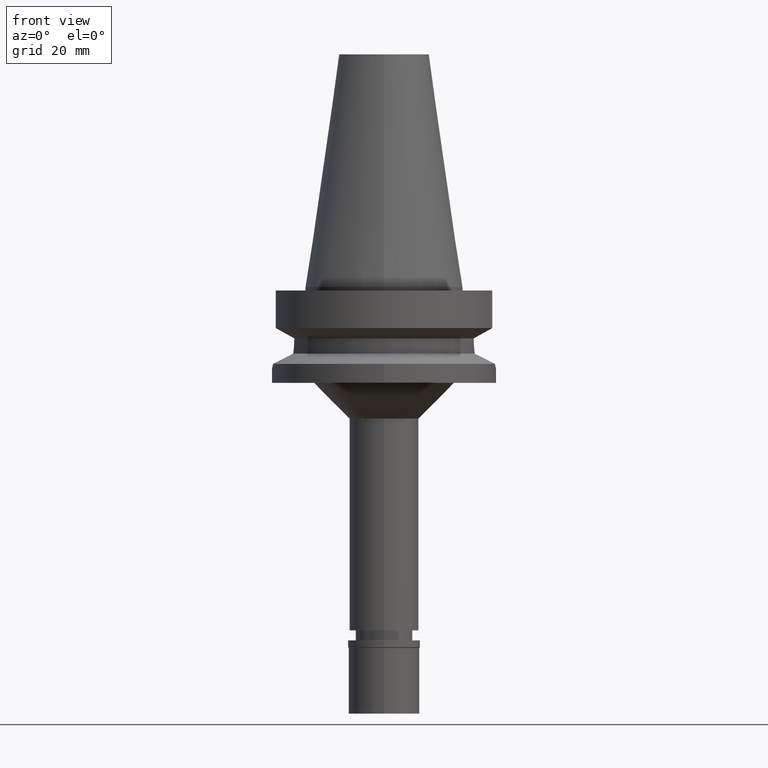
[diagram: clean part render]
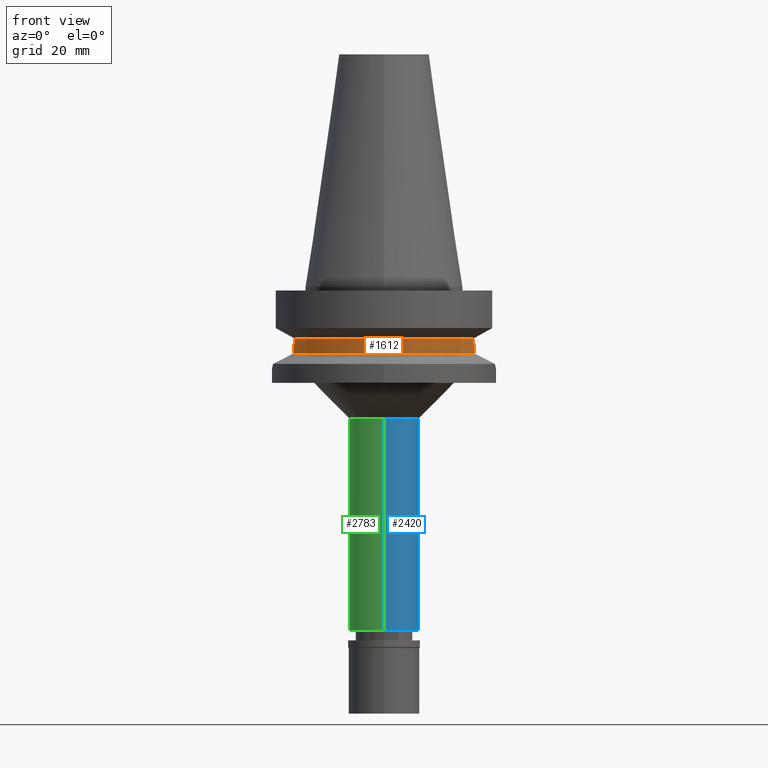
[diagram: same view with three faces highlighted in distinct colors, each labeled with its STEP entity id]
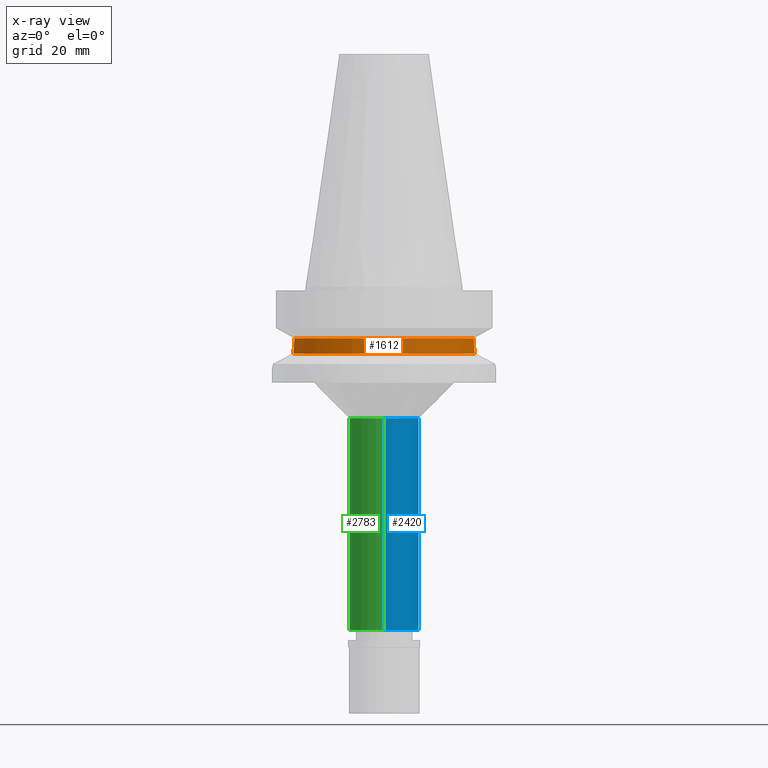
[diagram: x-ray of the same camera — body ghosted, the three highlighted faces saturated]
A machine part, front view with three faces highlighted in distinct colors.
The next image is the same camera in x-ray (body ghosted, the three faces saturated) — at least one of them is partly hidden behind the body in this view.
Their STEP definitions:

[orange] entity #1612 — the highlighted cylindrical surface (partial cylindrical patch) has radius 26.5 mm, axis along (0, 0, -1).
#17 = DIRECTION ( 'NONE',  ( 0.0000000000000000000, 0.0000000000000000000, -1.000000000000000000 ) ) ;
#66 = AXIS2_PLACEMENT_3D ( 'NONE', #531, #17, #258 ) ;
#86 = CARTESIAN_POINT ( 'NONE',  ( 0.0000000000000000000, 0.0000000000000000000, -14.45225699861000024 ) ) ;
#110 = CARTESIAN_POINT ( 'NONE',  ( -25.24772266958000344, -8.050000000000000711, -14.94999999999999929 ) ) ;
#128 = CARTESIAN_POINT ( 'NONE',  ( 0.0000000000000000000, 0.0000000000000000000, -18.74774300138999905 ) ) ;
#235 = ORIENTED_EDGE ( 'NONE', *, *, #1498, .F. ) ;
#258 = DIRECTION ( 'NONE',  ( 0.0000000000000000000, -1.000000000000000000, 0.0000000000000000000 ) ) ;
#355 = AXIS2_PLACEMENT_3D ( 'NONE', #86, #2457, #2487 ) ;
#380 = CARTESIAN_POINT ( 'NONE',  ( -25.53175183775000079, -7.097862220092999941, -18.74774300138999905 ) ) ;
#391 = CARTESIAN_POINT ( 'NONE',  ( 25.36814761471072188, -7.663830712965397751, -17.48803584493440155 ) ) ;
#408 = CIRCLE ( 'NONE', #355, 26.50000000000000711 ) ;
#437 = VERTEX_POINT ( 'NONE', #110 ) ;
#440 = CARTESIAN_POINT ( 'NONE',  ( 25.31202572170775156, -7.845729406580137066, -16.75279821057739937 ) ) ;
#462 = CARTESIAN_POINT ( 'NONE',  ( -25.24772266958000699, -8.050000000000000711, -15.58980474858213938 ) ) ;
#470 = CARTESIAN_POINT ( 'NONE',  ( 25.24772266958000344, -8.050000000000000711, -14.94999999999999929 ) ) ;
#482 = CARTESIAN_POINT ( 'NONE',  ( 25.24772266958000344, -8.050000000000000711, -14.45225699861000024 ) ) ;
#487 = EDGE_CURVE ( 'NONE', #437, #2580, #3079, .T. ) ;
#529 = EDGE_LOOP ( 'NONE', ( #2965, #855, #1046, #235, #3015, #730 ) ) ;
#531 = CARTESIAN_POINT ( 'NONE',  ( 0.0000000000000000000, 0.0000000000000000000, 0.0000000000000000000 ) ) ;
#641 = CARTESIAN_POINT ( 'NONE',  ( 25.31648647172268340, -7.831300037042765894, -16.81378020971402876 ) ) ;
#677 = CARTESIAN_POINT ( 'NONE',  ( 25.24772266958000344, -8.050000000000000711, -14.94999999999999929 ) ) ;
#697 = CARTESIAN_POINT ( 'NONE',  ( -25.32546393109958061, -7.802212764474003137, -16.93200521438838990 ) ) ;
#730 = ORIENTED_EDGE ( 'NONE', *, *, #487, .F. ) ;
#741 = CARTESIAN_POINT ( 'NONE',  ( -25.32415339823800338, -7.806463147621001575, -16.91521530248343197 ) ) ;
#752 = EDGE_CURVE ( 'NONE', #2999, #437, #1081, .T. ) ;
#855 = ORIENTED_EDGE ( 'NONE', *, *, #2988, .T. ) ;
#912 = VERTEX_POINT ( 'NONE', #1706 ) ;
#951 = CARTESIAN_POINT ( 'NONE',  ( -25.34384264181177926, -7.742472632649030295, -17.15618260535354977 ) ) ;
#982 = CARTESIAN_POINT ( 'NONE',  ( -25.33288764354210443, -7.778115188336424346, -17.02509724684081860 ) ) ;
#996 = CIRCLE ( 'NONE', #2753, 26.50000000000000000 ) ;
#1001 = VERTEX_POINT ( 'NONE', #482 ) ;
#1046 = ORIENTED_EDGE ( 'NONE', *, *, #2026, .F. ) ;
#1081 = B_SPLINE_CURVE_WITH_KNOTS ( 'NONE', 3,
 ( #1699, #1922, #2914, #1889, #2886, #1903, #951, #982, #2901, #697, #741, #1441, #462, #2421 ),
 .UNSPECIFIED., .F., .F.,
 ( 4, 2, 2, 1, 1, 2, 2, 4 ),
 ( 0.0000000000000000000, 0.2499999999999951150, 0.3749999999999914513, 0.4374999999999895084, 0.4687499999999885647, 0.4843749999999894529, 0.4999999999999903411, 1.000000000000000000 ),
 .UNSPECIFIED. ) ;
#1153 = LINE ( 'NONE', #1619, #2838 ) ;
#1167 = CARTESIAN_POINT ( 'NONE',  ( 25.27268336911708602, -7.971811480182260823, -16.08115959834934827 ) ) ;
#1181 = CARTESIAN_POINT ( 'NONE',  ( 25.25396284446426876, -8.030907492774099765, -15.59360398733918451 ) ) ;
#1395 = CARTESIAN_POINT ( 'NONE',  ( 25.31950905643224914, -7.821515286679936452, -16.85442525727312102 ) ) ;
#1410 = CARTESIAN_POINT ( 'NONE',  ( 25.53175183775000079, -7.097862220092999941, -18.74774300138999905 ) ) ;
#1426 = CYLINDRICAL_SURFACE ( 'NONE', #66, 26.50000000000000000 ) ;
#1441 = CARTESIAN_POINT ( 'NONE',  ( -25.27267964220303043, -7.973335155931463802, -16.24499043154098388 ) ) ;
#1498 = EDGE_CURVE ( 'NONE', #1001, #2674, #1153, .T. ) ;
#1612 = ADVANCED_FACE ( 'NONE', ( #2180 ), #1426, .T. ) ;
#1619 = CARTESIAN_POINT ( 'NONE',  ( 25.24772216380999978, -8.050001586270999709, -14.45224487810000014 ) ) ;
#1634 = CARTESIAN_POINT ( 'NONE',  ( 25.24772266958000699, -8.050000000000002487, -15.26991324108734283 ) ) ;
#1699 = CARTESIAN_POINT ( 'NONE',  ( -25.53175183775000079, -7.097862220092999941, -18.74774300138999905 ) ) ;
#1706 = CARTESIAN_POINT ( 'NONE',  ( 25.53175183775000079, -7.097862220092999941, -18.74774300138999905 ) ) ;
#1793 = DIRECTION ( 'NONE',  ( 0.0000000000000000000, 0.0000000000000000000, 1.000000000000000000 ) ) ;
#1817 = CARTESIAN_POINT ( 'NONE',  ( -25.24772413127999826, -8.049995415561999934, -14.45229202969999882 ) ) ;
#1820 = CARTESIAN_POINT ( 'NONE',  ( 25.43786330456364908, -7.435589081429985647, -18.11654211998960307 ) ) ;
#1885 = CARTESIAN_POINT ( 'NONE',  ( 25.30212919435223640, -7.877667573970346560, -16.61042047323940452 ) ) ;
#1889 = CARTESIAN_POINT ( 'NONE',  ( -25.39161415870588456, -7.584927955021788293, -17.65164487468281251 ) ) ;
#1903 = CARTESIAN_POINT ( 'NONE',  ( -25.35408242312715998, -7.708967322931910893, -17.26962711324177135 ) ) ;
#1922 = CARTESIAN_POINT ( 'NONE',  ( -25.48480632956524516, -7.266730116910204984, -18.43213421359635618 ) ) ;
#2026 = EDGE_CURVE ( 'NONE', #2674, #912, #2860, .T. ) ;
#2180 = FACE_OUTER_BOUND ( 'NONE', #529, .T. ) ;
#2285 = EDGE_CURVE ( 'NONE', #1001, #2580, #408, .T. ) ;
#2309 = DIRECTION ( 'NONE',  ( -2.936871101531895487E-06, 9.211099824828682816E-06, 0.9999999999532651618 ) ) ;
#2421 = CARTESIAN_POINT ( 'NONE',  ( -25.24772266958000344, -8.050000000000000711, -14.94999999999999929 ) ) ;
#2457 = DIRECTION ( 'NONE',  ( 0.0000000000000000000, 0.0000000000000000000, -1.000000000000000000 ) ) ;
#2487 = DIRECTION ( 'NONE',  ( 0.9527442516822307583, -0.3037735849057093818, 0.0000000000000000000 ) ) ;
#2525 = VECTOR ( 'NONE', #2309, 1000.000000000000114 ) ;
#2580 = VERTEX_POINT ( 'NONE', #1817 ) ;
#2592 = DIRECTION ( 'NONE',  ( 1.016096754685005474E-06, 3.186850171212018399E-06, -0.9999999999944056972 ) ) ;
#2605 = CARTESIAN_POINT ( 'NONE',  ( 25.29452398121202350, -7.902090651792936349, -16.48828405102941375 ) ) ;
#2674 = VERTEX_POINT ( 'NONE', #470 ) ;
#2753 = AXIS2_PLACEMENT_3D ( 'NONE', #128, #1793, #2774 ) ;
#2774 = DIRECTION ( 'NONE',  ( 0.0000000000000000000, -1.000000000000000000, 0.0000000000000000000 ) ) ;
#2801 = CARTESIAN_POINT ( 'NONE',  ( 25.28048358772242210, -7.947040743794927309, -16.24400980664070460 ) ) ;
#2824 = CARTESIAN_POINT ( 'NONE',  ( -25.24772266958000344, -8.050000000000000711, -14.94999999999999929 ) ) ;
#2838 = VECTOR ( 'NONE', #2592, 1000.000000000000114 ) ;
#2850 = CARTESIAN_POINT ( 'NONE',  ( 25.32118155423751205, -7.816096717212928091, -16.87652453452369627 ) ) ;
#2860 = B_SPLINE_CURVE_WITH_KNOTS ( 'NONE', 3,
 ( #677, #1634, #1181, #1167, #2801, #2605, #1885, #440, #641, #1395, #2850, #391, #1820, #1410 ),
 .UNSPECIFIED., .F., .F.,
 ( 4, 2, 2, 1, 1, 2, 2, 4 ),
 ( 0.0000000000000000000, 0.2499999999999894529, 0.3749999999999841238, 0.4374999999999827360, 0.4687499999999818479, 0.4843749999999814038, 0.4999999999999809042, 1.000000000000000000 ),
 .UNSPECIFIED. ) ;
#2886 = CARTESIAN_POINT ( 'NONE',  ( -25.37569502948930733, -7.637838761477345528, -17.49780446183530813 ) ) ;
#2901 = CARTESIAN_POINT ( 'NONE',  ( -25.32840508998330620, -7.792668837054353759, -16.96920308240299136 ) ) ;
#2914 = CARTESIAN_POINT ( 'NONE',  ( -25.44390372128112077, -7.408325733453222206, -18.11690357828249986 ) ) ;
#2965 = ORIENTED_EDGE ( 'NONE', *, *, #752, .F. ) ;
#2988 = EDGE_CURVE ( 'NONE', #2999, #912, #996, .T. ) ;
#2999 = VERTEX_POINT ( 'NONE', #380 ) ;
#3015 = ORIENTED_EDGE ( 'NONE', *, *, #2285, .T. ) ;
#3079 = LINE ( 'NONE', #2824, #2525 ) ;

[blue] entity #2420 — the highlighted cylindrical surface (edge-blend (fillet) strip) has radius 9.75 mm, axis along (0, 0, -1).
#306 = VECTOR ( 'NONE', #683, 1000.000000000000000 ) ;
#386 = FACE_OUTER_BOUND ( 'NONE', #1127, .T. ) ;
#669 = CARTESIAN_POINT ( 'NONE',  ( 0.0000000000000000000, -9.750000000000000000, -96.60000000000000853 ) ) ;
#683 = DIRECTION ( 'NONE',  ( 0.0000000000000000000, 0.0000000000000000000, -1.000000000000000000 ) ) ;
#829 = VECTOR ( 'NONE', #2681, 1000.000000000000000 ) ;
#848 = EDGE_CURVE ( 'NONE', #1832, #859, #1669, .T. ) ;
#859 = VERTEX_POINT ( 'NONE', #1171 ) ;
#883 = CARTESIAN_POINT ( 'NONE',  ( 0.0000000000000000000, 0.0000000000000000000, -37.00000000000000000 ) ) ;
#902 = DIRECTION ( 'NONE',  ( 0.0000000000000000000, 0.0000000000000000000, -1.000000000000000000 ) ) ;
#1127 = EDGE_LOOP ( 'NONE', ( #2759, #3038, #2539, #3034 ) ) ;
#1171 = CARTESIAN_POINT ( 'NONE',  ( 0.0000000000000000000, 9.750000000000000000, -96.60000000000000853 ) ) ;
#1286 = AXIS2_PLACEMENT_3D ( 'NONE', #1323, #2566, #1340 ) ;
#1323 = CARTESIAN_POINT ( 'NONE',  ( 0.0000000000000000000, 0.0000000000000000000, 0.0000000000000000000 ) ) ;
#1340 = DIRECTION ( 'NONE',  ( 0.0000000000000000000, -1.000000000000000000, 0.0000000000000000000 ) ) ;
#1590 = CIRCLE ( 'NONE', #3006, 9.750000000000000000 ) ;
#1661 = CIRCLE ( 'NONE', #2820, 9.750000000000000000 ) ;
#1669 = LINE ( 'NONE', #2650, #829 ) ;
#1832 = VERTEX_POINT ( 'NONE', #2271 ) ;
#1845 = DIRECTION ( 'NONE',  ( 0.0000000000000000000, -1.000000000000000000, 0.0000000000000000000 ) ) ;
#1899 = DIRECTION ( 'NONE',  ( 0.0000000000000000000, 1.000000000000000000, 0.0000000000000000000 ) ) ;
#2080 = EDGE_CURVE ( 'NONE', #1832, #2252, #1661, .T. ) ;
#2100 = LINE ( 'NONE', #2826, #306 ) ;
#2142 = EDGE_CURVE ( 'NONE', #2252, #2927, #2100, .T. ) ;
#2252 = VERTEX_POINT ( 'NONE', #3000 ) ;
#2271 = CARTESIAN_POINT ( 'NONE',  ( 0.0000000000000000000, 9.750000000000000000, -37.00000000000000000 ) ) ;
#2332 = CARTESIAN_POINT ( 'NONE',  ( 0.0000000000000000000, 0.0000000000000000000, -96.60000000000000853 ) ) ;
#2368 = CYLINDRICAL_SURFACE ( 'NONE', #1286, 9.750000000000000000 ) ;
#2420 = ADVANCED_FACE ( 'NONE', ( #386 ), #2368, .T. ) ;
#2539 = ORIENTED_EDGE ( 'NONE', *, *, #2976, .T. ) ;
#2566 = DIRECTION ( 'NONE',  ( 0.0000000000000000000, 0.0000000000000000000, -1.000000000000000000 ) ) ;
#2650 = CARTESIAN_POINT ( 'NONE',  ( 0.0000000000000000000, 9.750000000000000000, -37.00000000000000000 ) ) ;
#2681 = DIRECTION ( 'NONE',  ( 0.0000000000000000000, 0.0000000000000000000, -1.000000000000000000 ) ) ;
#2759 = ORIENTED_EDGE ( 'NONE', *, *, #2080, .T. ) ;
#2820 = AXIS2_PLACEMENT_3D ( 'NONE', #883, #902, #1899 ) ;
#2826 = CARTESIAN_POINT ( 'NONE',  ( 0.0000000000000000000, -9.750000000000000000, -37.00000000000000000 ) ) ;
#2927 = VERTEX_POINT ( 'NONE', #669 ) ;
#2976 = EDGE_CURVE ( 'NONE', #2927, #859, #1590, .T. ) ;
#3000 = CARTESIAN_POINT ( 'NONE',  ( 0.0000000000000000000, -9.750000000000000000, -37.00000000000000000 ) ) ;
#3006 = AXIS2_PLACEMENT_3D ( 'NONE', #2332, #3030, #1845 ) ;
#3030 = DIRECTION ( 'NONE',  ( 0.0000000000000000000, 0.0000000000000000000, 1.000000000000000000 ) ) ;
#3034 = ORIENTED_EDGE ( 'NONE', *, *, #848, .F. ) ;
#3038 = ORIENTED_EDGE ( 'NONE', *, *, #2142, .T. ) ;

[green] entity #2783 — the highlighted cylindrical surface (edge-blend (fillet) strip) has radius 9.75 mm, axis along (0, 0, -1).
#97 = DIRECTION ( 'NONE',  ( 0.0000000000000000000, -1.000000000000000000, 0.0000000000000000000 ) ) ;
#223 = ORIENTED_EDGE ( 'NONE', *, *, #362, .T. ) ;
#277 = DIRECTION ( 'NONE',  ( 0.0000000000000000000, 1.000000000000000000, 0.0000000000000000000 ) ) ;
#306 = VECTOR ( 'NONE', #683, 1000.000000000000000 ) ;
#319 = DIRECTION ( 'NONE',  ( 0.0000000000000000000, -1.000000000000000000, 0.0000000000000000000 ) ) ;
#322 = CARTESIAN_POINT ( 'NONE',  ( 0.0000000000000000000, 0.0000000000000000000, 0.0000000000000000000 ) ) ;
#362 = EDGE_CURVE ( 'NONE', #2252, #1832, #2920, .T. ) ;
#402 = ORIENTED_EDGE ( 'NONE', *, *, #1199, .T. ) ;
#507 = CARTESIAN_POINT ( 'NONE',  ( 0.0000000000000000000, 0.0000000000000000000, -96.60000000000000853 ) ) ;
#526 = DIRECTION ( 'NONE',  ( 0.0000000000000000000, 0.0000000000000000000, -1.000000000000000000 ) ) ;
#569 = CYLINDRICAL_SURFACE ( 'NONE', #1646, 9.750000000000000000 ) ;
#669 = CARTESIAN_POINT ( 'NONE',  ( 0.0000000000000000000, -9.750000000000000000, -96.60000000000000853 ) ) ;
#683 = DIRECTION ( 'NONE',  ( 0.0000000000000000000, 0.0000000000000000000, -1.000000000000000000 ) ) ;
#812 = FACE_OUTER_BOUND ( 'NONE', #1867, .T. ) ;
#829 = VECTOR ( 'NONE', #2681, 1000.000000000000000 ) ;
#836 = DIRECTION ( 'NONE',  ( 0.0000000000000000000, 0.0000000000000000000, -1.000000000000000000 ) ) ;
#848 = EDGE_CURVE ( 'NONE', #1832, #859, #1669, .T. ) ;
#859 = VERTEX_POINT ( 'NONE', #1171 ) ;
#1017 = ORIENTED_EDGE ( 'NONE', *, *, #2142, .F. ) ;
#1171 = CARTESIAN_POINT ( 'NONE',  ( 0.0000000000000000000, 9.750000000000000000, -96.60000000000000853 ) ) ;
#1199 = EDGE_CURVE ( 'NONE', #859, #2927, #1674, .T. ) ;
#1408 = ORIENTED_EDGE ( 'NONE', *, *, #848, .T. ) ;
#1458 = DIRECTION ( 'NONE',  ( 0.0000000000000000000, 0.0000000000000000000, 1.000000000000000000 ) ) ;
#1646 = AXIS2_PLACEMENT_3D ( 'NONE', #322, #526, #97 ) ;
#1669 = LINE ( 'NONE', #2650, #829 ) ;
#1674 = CIRCLE ( 'NONE', #2540, 9.750000000000000000 ) ;
#1731 = CARTESIAN_POINT ( 'NONE',  ( 0.0000000000000000000, 0.0000000000000000000, -37.00000000000000000 ) ) ;
#1832 = VERTEX_POINT ( 'NONE', #2271 ) ;
#1867 = EDGE_LOOP ( 'NONE', ( #402, #1017, #223, #1408 ) ) ;
#2100 = LINE ( 'NONE', #2826, #306 ) ;
#2142 = EDGE_CURVE ( 'NONE', #2252, #2927, #2100, .T. ) ;
#2252 = VERTEX_POINT ( 'NONE', #3000 ) ;
#2271 = CARTESIAN_POINT ( 'NONE',  ( 0.0000000000000000000, 9.750000000000000000, -37.00000000000000000 ) ) ;
#2429 = AXIS2_PLACEMENT_3D ( 'NONE', #1731, #836, #319 ) ;
#2540 = AXIS2_PLACEMENT_3D ( 'NONE', #507, #1458, #277 ) ;
#2650 = CARTESIAN_POINT ( 'NONE',  ( 0.0000000000000000000, 9.750000000000000000, -37.00000000000000000 ) ) ;
#2681 = DIRECTION ( 'NONE',  ( 0.0000000000000000000, 0.0000000000000000000, -1.000000000000000000 ) ) ;
#2783 = ADVANCED_FACE ( 'NONE', ( #812 ), #569, .T. ) ;
#2826 = CARTESIAN_POINT ( 'NONE',  ( 0.0000000000000000000, -9.750000000000000000, -37.00000000000000000 ) ) ;
#2920 = CIRCLE ( 'NONE', #2429, 9.750000000000000000 ) ;
#2927 = VERTEX_POINT ( 'NONE', #669 ) ;
#3000 = CARTESIAN_POINT ( 'NONE',  ( 0.0000000000000000000, -9.750000000000000000, -37.00000000000000000 ) ) ;